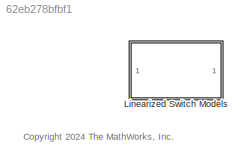
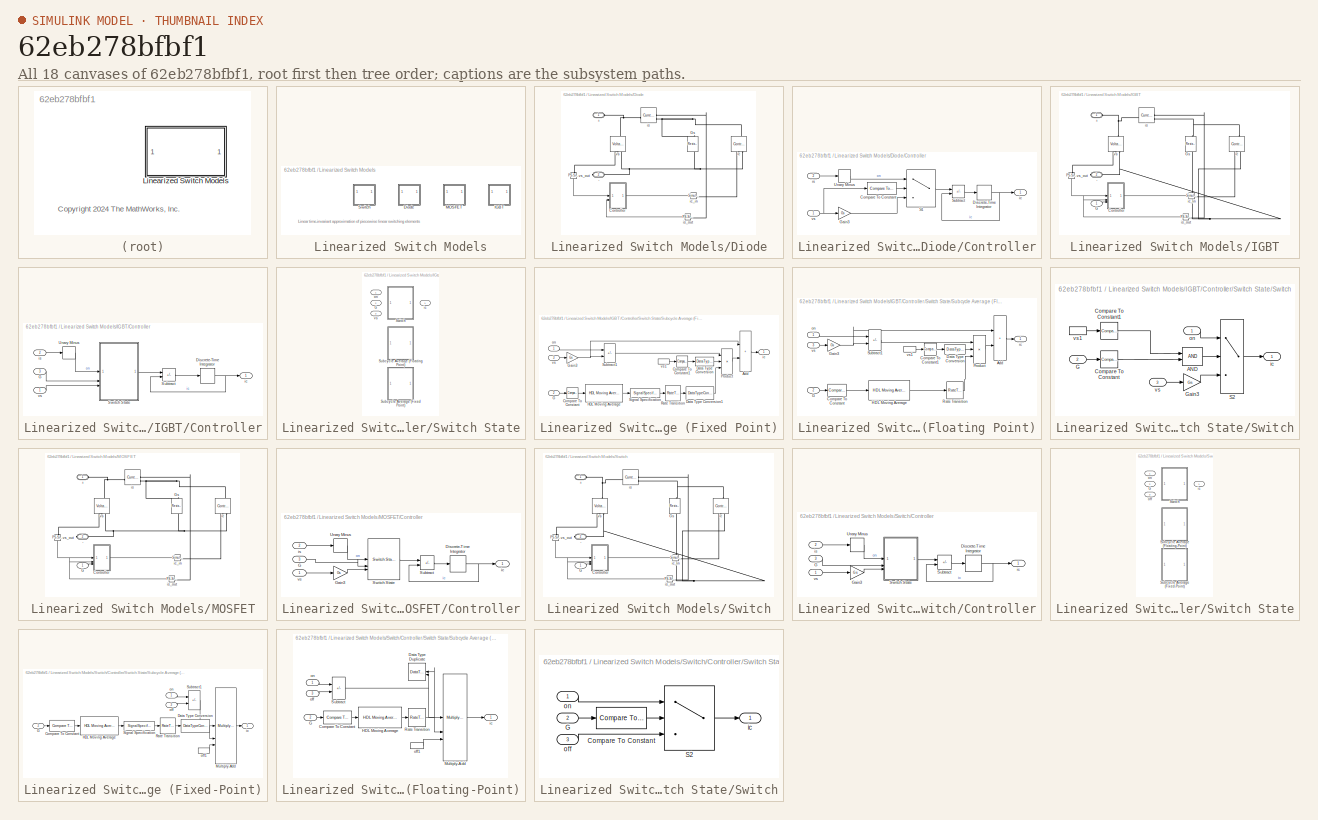
[diagram: thumbnail index - all 18 canvases of the model, root first then tree order]
MODEL slx_62eb278bfbf1
KIND library
CONFIG AbsTol = auto
CONFIG EnableMultiTasking = off
CONFIG FixedStep = auto
CONFIG MaxStep = auto
CONFIG MinStep = auto
CONFIG RelTol = 1e-3
CONFIG SampleTimeConstraint = Unconstrained
CONFIG SolverName = VariableStepAuto
CONFIG StartTime = 0.0
CONFIG StopTime = 10.0
BLOCK [SubSystem] Linearized Switch Models
BLOCK [SubSystem] Linearized Switch Models/Diode
  CopyFcn = set_param(gcb, 'LinkStatus', 'none');
BLOCK [PMIOPort] Linearized Switch Models/Diode/+
  Side = Left
BLOCK [PMIOPort] Linearized Switch Models/Diode/-
  NameLocation = top
  Port = 2
  Side = Right
BLOCK [SubSystem] Linearized Switch Models/Diode/Controller
BLOCK [Reference] Linearized Switch Models/Diode/Controller/Compare To Constant  REF=simulink/Logic and Bit
Operations/Compare
To Constant
  LibrarySourceBlock = SimscapeFPGAHIL_lib/Linearized Switch Models/Switch/Controller/Switch State/Switch/Compare\nTo Constant
  SourceBlock = simulink/Logic and Bit\nOperations/Compare\nTo Constant
  SourceType = Compare To Constant
BLOCK [DiscreteIntegrator] Linearized Switch Models/Diode/Controller/Discrete-Time Integrator
  ICPrevOutput = DiscIntNeverNeededParam
  ICPrevScaledInput = DiscIntNeverNeededParam
  InitialConditionSetting = Auto
  IntegratorMethod = Accumulation: Forward Euler
  OutDataTypeStr = Inherit: Inherit via back propagation
  SampleTime = -1
  gainval = 1/s
BLOCK [Gain] Linearized Switch Models/Diode/Controller/Gain3
  Gain = Gs
  OutDataTypeStr = Inherit: Inherit via back propagation
BLOCK [Switch] Linearized Switch Models/Diode/Controller/S1
  Criteria = u2 ~= 0
  SaturateOnIntegerOverflow = off
  Threshold = threshold
BLOCK [Sum] Linearized Switch Models/Diode/Controller/Subtract
  IconShape = rectangular
  Inputs = +-
BLOCK [UnaryMinus] Linearized Switch Models/Diode/Controller/Unary Minus
BLOCK [Outport] Linearized Switch Models/Diode/Controller/ic
BLOCK [Inport] Linearized Switch Models/Diode/Controller/is
  NameLocation = top
  Port = 2
BLOCK [Inport] Linearized Switch Models/Diode/Controller/vs
BLOCK [Reference] Linearized Switch Models/Diode/Gs  REF=fl_lib/Electrical/Electrical Elements/Resistor
  LibrarySourceBlock = SimscapeFPGAHIL_lib/Linearized Switch Models/Switch/Gs
  NameLocation = right
  SourceBlock = fl_lib/Electrical/Electrical Elements/Resistor
  SourceType = Resistor
BLOCK [Reference] Linearized Switch Models/Diode/ic  REF=fl_lib/Electrical/Electrical Sources/Controlled Current
Source
  LibrarySourceBlock = SimscapeFPGAHIL_lib/Linearized Switch Models/Switch/ic
  NameLocation = right
  SourceBlock = fl_lib/Electrical/Electrical Sources/Controlled Current\nSource
  SourceType = Controlled Current\nSource
BLOCK [Reference] Linearized Switch Models/Diode/ic_in  REF=nesl_utility/Simulink-PS
Converter
  LibrarySourceBlock = SimscapeFPGAHIL_lib/Linearized Switch Models/Switch/ic_in
  SourceBlock = nesl_utility/Simulink-PS\nConverter
  SourceType = Simulink-PS\nConverter
BLOCK [Reference] Linearized Switch Models/Diode/is  REF=fl_lib/Electrical/Electrical Sensors/Current Sensor
  LibrarySourceBlock = SimscapeFPGAHIL_lib/Linearized Switch Models/Switch/is
  SourceBlock = fl_lib/Electrical/Electrical Sensors/Current Sensor
  SourceType = Current Sensor
BLOCK [Reference] Linearized Switch Models/Diode/is_out  REF=nesl_utility/PS-Simulink
Converter
  LibrarySourceBlock = SimscapeFPGAHIL_lib/Linearized Switch Models/Switch/is_out
  SourceBlock = nesl_utility/PS-Simulink\nConverter
  SourceType = PS-Simulink\nConverter
BLOCK [Reference] Linearized Switch Models/Diode/vs  REF=fl_lib/Electrical/Electrical Sensors/Voltage Sensor
  LibrarySourceBlock = SimscapeFPGAHIL_lib/Linearized Switch Models/Switch/vs
  NameLocation = left
  SourceBlock = fl_lib/Electrical/Electrical Sensors/Voltage Sensor
  SourceType = Voltage Sensor
BLOCK [Reference] Linearized Switch Models/Diode/vs_out  REF=nesl_utility/PS-Simulink
Converter
  LibrarySourceBlock = SimscapeFPGAHIL_lib/Linearized Switch Models/Switch/vs_out
  NameLocation = left
  SourceBlock = nesl_utility/PS-Simulink\nConverter
  SourceType = PS-Simulink\nConverter
BLOCK [SubSystem] Linearized Switch Models/IGBT
  CopyFcn = set_param(gcb, 'LinkStatus', 'none');
BLOCK [PMIOPort] Linearized Switch Models/IGBT/+
  Side = Left
BLOCK [PMIOPort] Linearized Switch Models/IGBT/-
  NameLocation = top
  Port = 2
  Side = Right
BLOCK [SubSystem] Linearized Switch Models/IGBT/Controller
BLOCK [DiscreteIntegrator] Linearized Switch Models/IGBT/Controller/Discrete-Time Integrator
  ICPrevOutput = DiscIntNeverNeededParam
  ICPrevScaledInput = DiscIntNeverNeededParam
  InitialConditionSetting = Auto
  IntegratorMethod = Accumulation: Forward Euler
  OutDataTypeStr = Inherit: Inherit via back propagation
  SampleTime = -1
  gainval = 1/s
BLOCK [Inport] Linearized Switch Models/IGBT/Controller/G
  Port = 3
BLOCK [Sum] Linearized Switch Models/IGBT/Controller/Subtract
  IconShape = rectangular
  Inputs = +-
BLOCK [SubSystem] Linearized Switch Models/IGBT/Controller/Switch State
  Variant = on
  VariantControl = Choice
BLOCK [Inport] Linearized Switch Models/IGBT/Controller/Switch State/G
  Port = 2
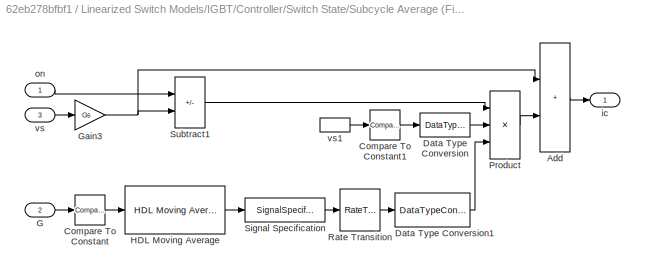
BLOCK [SubSystem] Linearized Switch Models/IGBT/Controller/Switch State/Subcycle Average (Fixed Point)
  LibrarySourceBlock = SimscapeFPGAHIL_lib/Linearized Switch Models/IGBT/Controller/Switch State/Subcycle Average
  VariantControl = avgFactor > 1 && isFixedPoint
BLOCK [Sum] Linearized Switch Models/IGBT/Controller/Switch State/Subcycle Average (Fixed Point)/Add
  IconShape = rectangular
BLOCK [Reference] Linearized Switch Models/IGBT/Controller/Switch State/Subcycle Average (Fixed Point)/Compare To Constant  REF=simulink/Logic and Bit
Operations/Compare
To Constant
  LibrarySourceBlock = SimscapeFPGAHIL_lib/Linearized Switch Models/IGBT/Controller/Switch State/Subcycle Average/Compare\nTo Constant
  SourceBlock = simulink/Logic and Bit\nOperations/Compare\nTo Constant
  SourceType = Compare To Constant
BLOCK [Reference] Linearized Switch Models/IGBT/Controller/Switch State/Subcycle Average (Fixed Point)/Compare To Constant1  REF=simulink/Logic and Bit
Operations/Compare
To Constant
  LibrarySourceBlock = SimscapeFPGAHIL_lib/Linearized Switch Models/IGBT/Controller/Switch State/Subcycle Average/Compare\nTo Constant1
  SourceBlock = simulink/Logic and Bit\nOperations/Compare\nTo Constant
  SourceType = Compare To Constant
BLOCK [DataTypeConversion] Linearized Switch Models/IGBT/Controller/Switch State/Subcycle Average (Fixed Point)/Data Type Conversion
  RndMeth = Floor
  SaturateOnIntegerOverflow = off
BLOCK [DataTypeConversion] Linearized Switch Models/IGBT/Controller/Switch State/Subcycle Average (Fixed Point)/Data Type Conversion1
  RndMeth = Floor
  SaturateOnIntegerOverflow = off
BLOCK [Inport] Linearized Switch Models/IGBT/Controller/Switch State/Subcycle Average (Fixed Point)/G
  Port = 2
BLOCK [Gain] Linearized Switch Models/IGBT/Controller/Switch State/Subcycle Average (Fixed Point)/Gain3
  Gain = Gs
BLOCK [Reference] Linearized Switch Models/IGBT/Controller/Switch State/Subcycle Average (Fixed Point)/HDL Moving Average  REF=fpga_utils_lib/HDL Moving Average  (lib defined in slx_141b27237374)
  SourceBlock = fpga_utils_lib/HDL Moving Average
BLOCK [Product] Linearized Switch Models/IGBT/Controller/Switch State/Subcycle Average (Fixed Point)/Product
  InputSameDT = on
  Inputs = 3
BLOCK [RateTransition] Linearized Switch Models/IGBT/Controller/Switch State/Subcycle Average (Fixed Point)/Rate Transition
  OutPortSampleTimeMultiple = avgFactor
  OutPortSampleTimeOpt = Multiple of input port sample time
BLOCK [SignalSpecification] Linearized Switch Models/IGBT/Controller/Switch State/Subcycle Average (Fixed Point)/Signal Specification
  LockScale = on
  OutDataTypeStr = fixdt(0,15,14)
  OutMax = 1
  OutMin = 0
BLOCK [Sum] Linearized Switch Models/IGBT/Controller/Switch State/Subcycle Average (Fixed Point)/Subtract1
  IconShape = rectangular
  Inputs = +-
BLOCK [Outport] Linearized Switch Models/IGBT/Controller/Switch State/Subcycle Average (Fixed Point)/ic
BLOCK [Inport] Linearized Switch Models/IGBT/Controller/Switch State/Subcycle Average (Fixed Point)/on
BLOCK [Inport] Linearized Switch Models/IGBT/Controller/Switch State/Subcycle Average (Fixed Point)/vs
  Port = 3
BLOCK [InportShadow] Linearized Switch Models/IGBT/Controller/Switch State/Subcycle Average (Fixed Point)/vs1
  Port = 3
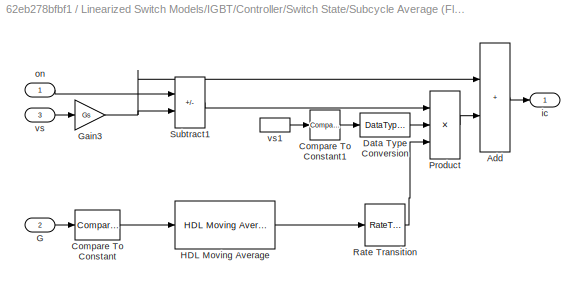
BLOCK [SubSystem] Linearized Switch Models/IGBT/Controller/Switch State/Subcycle Average (Floating Point)
  VariantControl = avgFactor > 1 && ~isFixedPoint
BLOCK [Sum] Linearized Switch Models/IGBT/Controller/Switch State/Subcycle Average (Floating Point)/Add
  IconShape = rectangular
BLOCK [Reference] Linearized Switch Models/IGBT/Controller/Switch State/Subcycle Average (Floating Point)/Compare To Constant  REF=simulink/Logic and Bit
Operations/Compare
To Constant
  SourceBlock = simulink/Logic and Bit\nOperations/Compare\nTo Constant
  SourceType = Compare To Constant
BLOCK [Reference] Linearized Switch Models/IGBT/Controller/Switch State/Subcycle Average (Floating Point)/Compare To Constant1  REF=simulink/Logic and Bit
Operations/Compare
To Constant
  SourceBlock = simulink/Logic and Bit\nOperations/Compare\nTo Constant
  SourceType = Compare To Constant
BLOCK [DataTypeConversion] Linearized Switch Models/IGBT/Controller/Switch State/Subcycle Average (Floating Point)/Data Type Conversion
  RndMeth = Floor
  SaturateOnIntegerOverflow = off
BLOCK [Inport] Linearized Switch Models/IGBT/Controller/Switch State/Subcycle Average (Floating Point)/G
  Port = 2
BLOCK [Gain] Linearized Switch Models/IGBT/Controller/Switch State/Subcycle Average (Floating Point)/Gain3
  Gain = Gs
BLOCK [Reference] Linearized Switch Models/IGBT/Controller/Switch State/Subcycle Average (Floating Point)/HDL Moving Average  REF=fpga_utils_lib/HDL Moving Average  (lib defined in slx_141b27237374)
  SourceBlock = fpga_utils_lib/HDL Moving Average
BLOCK [Product] Linearized Switch Models/IGBT/Controller/Switch State/Subcycle Average (Floating Point)/Product
  InputSameDT = on
  Inputs = 3
BLOCK [RateTransition] Linearized Switch Models/IGBT/Controller/Switch State/Subcycle Average (Floating Point)/Rate Transition
  OutPortSampleTimeMultiple = avgFactor
  OutPortSampleTimeOpt = Multiple of input port sample time
BLOCK [Sum] Linearized Switch Models/IGBT/Controller/Switch State/Subcycle Average (Floating Point)/Subtract1
  IconShape = rectangular
  Inputs = +-
  OutDataTypeStr = Inherit: Same as first input
BLOCK [Outport] Linearized Switch Models/IGBT/Controller/Switch State/Subcycle Average (Floating Point)/ic
BLOCK [Inport] Linearized Switch Models/IGBT/Controller/Switch State/Subcycle Average (Floating Point)/on
BLOCK [Inport] Linearized Switch Models/IGBT/Controller/Switch State/Subcycle Average (Floating Point)/vs
  Port = 3
BLOCK [InportShadow] Linearized Switch Models/IGBT/Controller/Switch State/Subcycle Average (Floating Point)/vs1
  Port = 3
BLOCK [SubSystem] Linearized Switch Models/IGBT/Controller/Switch State/Switch
  VariantControl = avgFactor == 1
BLOCK [Logic] Linearized Switch Models/IGBT/Controller/Switch State/Switch/AND
  AllPortsSameDT = off
  IconShape = distinctive
  OutDataTypeStr = boolean
BLOCK [Reference] Linearized Switch Models/IGBT/Controller/Switch State/Switch/Compare To Constant  REF=simulink/Logic and Bit
Operations/Compare
To Constant
  LibrarySourceBlock = SimscapeFPGAHIL_lib/Linearized Switch Models/Controller/Switch State/Switch/Compare\nTo Constant
  SourceBlock = simulink/Logic and Bit\nOperations/Compare\nTo Constant
  SourceType = Compare To Constant
BLOCK [Reference] Linearized Switch Models/IGBT/Controller/Switch State/Switch/Compare To Constant1  REF=simulink/Logic and Bit
Operations/Compare
To Constant
  LibrarySourceBlock = SimscapeFPGAHIL_lib/Linearized Switch Models/Controller/Switch State/Switch/Compare\nTo Constant1
  SourceBlock = simulink/Logic and Bit\nOperations/Compare\nTo Constant
  SourceType = Compare To Constant
BLOCK [Inport] Linearized Switch Models/IGBT/Controller/Switch State/Switch/G
  Port = 2
BLOCK [Gain] Linearized Switch Models/IGBT/Controller/Switch State/Switch/Gain3
  Gain = Gs
  OutDataTypeStr = Inherit: Inherit via back propagation
BLOCK [Switch] Linearized Switch Models/IGBT/Controller/Switch State/Switch/S2
  Criteria = u2 ~= 0
  SaturateOnIntegerOverflow = off
  Threshold = threshold
BLOCK [Outport] Linearized Switch Models/IGBT/Controller/Switch State/Switch/ic
BLOCK [Inport] Linearized Switch Models/IGBT/Controller/Switch State/Switch/on
BLOCK [Inport] Linearized Switch Models/IGBT/Controller/Switch State/Switch/vs
  Port = 3
BLOCK [InportShadow] Linearized Switch Models/IGBT/Controller/Switch State/Switch/vs1
  Port = 3
BLOCK [Outport] Linearized Switch Models/IGBT/Controller/Switch State/ic
BLOCK [Inport] Linearized Switch Models/IGBT/Controller/Switch State/on
BLOCK [Inport] Linearized Switch Models/IGBT/Controller/Switch State/vs
  Port = 3
BLOCK [UnaryMinus] Linearized Switch Models/IGBT/Controller/Unary Minus
BLOCK [Outport] Linearized Switch Models/IGBT/Controller/ic
BLOCK [Inport] Linearized Switch Models/IGBT/Controller/is
  NameLocation = top
  Port = 2
BLOCK [Inport] Linearized Switch Models/IGBT/Controller/vs
BLOCK [Inport] Linearized Switch Models/IGBT/G
BLOCK [Reference] Linearized Switch Models/IGBT/Gs  REF=fl_lib/Electrical/Electrical Elements/Resistor
  LibrarySourceBlock = SimscapeFPGAHIL_lib/Linearized Switch Models/MOSFET/Gs
  NameLocation = right
  SourceBlock = fl_lib/Electrical/Electrical Elements/Resistor
  SourceType = Resistor
BLOCK [Reference] Linearized Switch Models/IGBT/ic  REF=fl_lib/Electrical/Electrical Sources/Controlled Current
Source
  LibrarySourceBlock = SimscapeFPGAHIL_lib/Linearized Switch Models/MOSFET/ic
  NameLocation = right
  SourceBlock = fl_lib/Electrical/Electrical Sources/Controlled Current\nSource
  SourceType = Controlled Current\nSource
BLOCK [Reference] Linearized Switch Models/IGBT/ic_in  REF=nesl_utility/Simulink-PS
Converter
  LibrarySourceBlock = SimscapeFPGAHIL_lib/Linearized Switch Models/MOSFET/ic_in
  SourceBlock = nesl_utility/Simulink-PS\nConverter
  SourceType = Simulink-PS\nConverter
BLOCK [Reference] Linearized Switch Models/IGBT/is  REF=fl_lib/Electrical/Electrical Sensors/Current Sensor
  LibrarySourceBlock = SimscapeFPGAHIL_lib/Linearized Switch Models/MOSFET/is
  SourceBlock = fl_lib/Electrical/Electrical Sensors/Current Sensor
  SourceType = Current Sensor
BLOCK [Reference] Linearized Switch Models/IGBT/is_out  REF=nesl_utility/PS-Simulink
Converter
  LibrarySourceBlock = SimscapeFPGAHIL_lib/Linearized Switch Models/MOSFET/is_out
  SourceBlock = nesl_utility/PS-Simulink\nConverter
  SourceType = PS-Simulink\nConverter
BLOCK [Reference] Linearized Switch Models/IGBT/vs  REF=fl_lib/Electrical/Electrical Sensors/Voltage Sensor
  LibrarySourceBlock = SimscapeFPGAHIL_lib/Linearized Switch Models/MOSFET/vs
  NameLocation = left
  SourceBlock = fl_lib/Electrical/Electrical Sensors/Voltage Sensor
  SourceType = Voltage Sensor
BLOCK [Reference] Linearized Switch Models/IGBT/vs_out  REF=nesl_utility/PS-Simulink
Converter
  LibrarySourceBlock = SimscapeFPGAHIL_lib/Linearized Switch Models/MOSFET/vs_out
  NameLocation = left
  SourceBlock = nesl_utility/PS-Simulink\nConverter
  SourceType = PS-Simulink\nConverter
BLOCK [SubSystem] Linearized Switch Models/MOSFET
  CopyFcn = set_param(gcb, 'LinkStatus', 'none');
BLOCK [PMIOPort] Linearized Switch Models/MOSFET/+
  Side = Left
BLOCK [PMIOPort] Linearized Switch Models/MOSFET/-
  NameLocation = top
  Port = 2
  Side = Right
BLOCK [SubSystem] Linearized Switch Models/MOSFET/Controller
BLOCK [DiscreteIntegrator] Linearized Switch Models/MOSFET/Controller/Discrete-Time Integrator
  ICPrevOutput = DiscIntNeverNeededParam
  ICPrevScaledInput = DiscIntNeverNeededParam
  InitialConditionSetting = Auto
  IntegratorMethod = Accumulation: Forward Euler
  OutDataTypeStr = Inherit: Inherit via back propagation
  SampleTime = -1
  gainval = 1/s
BLOCK [Inport] Linearized Switch Models/MOSFET/Controller/G
  Port = 3
BLOCK [Gain] Linearized Switch Models/MOSFET/Controller/Gain3
  Gain = Gs
  OutDataTypeStr = Inherit: Inherit via back propagation
BLOCK [Sum] Linearized Switch Models/MOSFET/Controller/Subtract
  IconShape = rectangular
  Inputs = +-
BLOCK [Reference] Linearized Switch Models/MOSFET/Controller/Switch State  REF=$bdroot/Linearized Switch Models/Switch/Controller/Switch State
  LibrarySourceBlock = SimscapeFPGAHIL_lib/Linearized Switch Models/MOSFET/Controller/Controller/Switch State
  SourceBlock = $bdroot/Linearized Switch Models/Switch/Controller/Switch State
  SourceType = SubSystem
BLOCK [UnaryMinus] Linearized Switch Models/MOSFET/Controller/Unary Minus
BLOCK [Outport] Linearized Switch Models/MOSFET/Controller/ic
BLOCK [Inport] Linearized Switch Models/MOSFET/Controller/is
  NameLocation = top
  Port = 2
BLOCK [Inport] Linearized Switch Models/MOSFET/Controller/vs
BLOCK [Inport] Linearized Switch Models/MOSFET/G
BLOCK [Reference] Linearized Switch Models/MOSFET/Gs  REF=fl_lib/Electrical/Electrical Elements/Resistor
  NameLocation = right
  SourceBlock = fl_lib/Electrical/Electrical Elements/Resistor
  SourceType = Resistor
BLOCK [Reference] Linearized Switch Models/MOSFET/ic  REF=fl_lib/Electrical/Electrical Sources/Controlled Current
Source
  NameLocation = right
  SourceBlock = fl_lib/Electrical/Electrical Sources/Controlled Current\nSource
  SourceType = Controlled Current\nSource
BLOCK [Reference] Linearized Switch Models/MOSFET/ic_in  REF=nesl_utility/Simulink-PS
Converter
  SourceBlock = nesl_utility/Simulink-PS\nConverter
  SourceType = Simulink-PS\nConverter
BLOCK [Reference] Linearized Switch Models/MOSFET/is  REF=fl_lib/Electrical/Electrical Sensors/Current Sensor
  SourceBlock = fl_lib/Electrical/Electrical Sensors/Current Sensor
  SourceType = Current Sensor
BLOCK [Reference] Linearized Switch Models/MOSFET/is_out  REF=nesl_utility/PS-Simulink
Converter
  SourceBlock = nesl_utility/PS-Simulink\nConverter
  SourceType = PS-Simulink\nConverter
BLOCK [Reference] Linearized Switch Models/MOSFET/vs  REF=fl_lib/Electrical/Electrical Sensors/Voltage Sensor
  NameLocation = left
  SourceBlock = fl_lib/Electrical/Electrical Sensors/Voltage Sensor
  SourceType = Voltage Sensor
BLOCK [Reference] Linearized Switch Models/MOSFET/vs_out  REF=nesl_utility/PS-Simulink
Converter
  NameLocation = left
  SourceBlock = nesl_utility/PS-Simulink\nConverter
  SourceType = PS-Simulink\nConverter
BLOCK [SubSystem] Linearized Switch Models/Switch
  CopyFcn = set_param(gcb, 'LinkStatus', 'none');
BLOCK [PMIOPort] Linearized Switch Models/Switch/+
  Side = Left
BLOCK [PMIOPort] Linearized Switch Models/Switch/-
  NameLocation = top
  Port = 2
  Side = Right
BLOCK [SubSystem] Linearized Switch Models/Switch/Controller
BLOCK [DiscreteIntegrator] Linearized Switch Models/Switch/Controller/Discrete-Time Integrator
  ICPrevOutput = DiscIntNeverNeededParam
  ICPrevScaledInput = DiscIntNeverNeededParam
  InitialConditionSetting = Auto
  IntegratorMethod = Accumulation: Forward Euler
  OutDataTypeStr = Inherit: Inherit via back propagation
  SampleTime = -1
  gainval = 1/s
BLOCK [Inport] Linearized Switch Models/Switch/Controller/G
  Port = 3
BLOCK [Gain] Linearized Switch Models/Switch/Controller/Gain3
  Gain = Gs
  OutDataTypeStr = Inherit: Inherit via back propagation
BLOCK [Sum] Linearized Switch Models/Switch/Controller/Subtract
  IconShape = rectangular
  Inputs = +-
BLOCK [SubSystem] Linearized Switch Models/Switch/Controller/Switch State
  Variant = on
  VariantControl = Choice
BLOCK [Inport] Linearized Switch Models/Switch/Controller/Switch State/G
  Port = 2
BLOCK [SubSystem] Linearized Switch Models/Switch/Controller/Switch State/Subcycle Average (Fixed-Point)
  VariantControl = avgFactor > 1 && isFixedPoint == true
BLOCK [Reference] Linearized Switch Models/Switch/Controller/Switch State/Subcycle Average (Fixed-Point)/Compare To Constant  REF=simulink/Logic and Bit
Operations/Compare
To Constant
  SourceBlock = simulink/Logic and Bit\nOperations/Compare\nTo Constant
  SourceType = Compare To Constant
BLOCK [DataTypeConversion] Linearized Switch Models/Switch/Controller/Switch State/Subcycle Average (Fixed-Point)/Data Type Conversion
  RndMeth = Floor
  SaturateOnIntegerOverflow = off
BLOCK [Inport] Linearized Switch Models/Switch/Controller/Switch State/Subcycle Average (Fixed-Point)/G
  Port = 2
BLOCK [Reference] Linearized Switch Models/Switch/Controller/Switch State/Subcycle Average (Fixed-Point)/HDL Moving Average  REF=fpga_utils_lib/HDL Moving Average  (lib defined in slx_141b27237374)
  SourceBlock = fpga_utils_lib/HDL Moving Average
BLOCK [Reference] Linearized Switch Models/Switch/Controller/Switch State/Subcycle Average (Fixed-Point)/Multiply-Add  REF=hdlsllib/HDL Operations/Multiply-Add
  LibrarySourceBlock = SimscapeFPGAHIL_lib/Linearized Switch Models/Switch/Controller/Switch State/Subcycle Average (Floating-Point)/Multiply-Add
  SourceBlock = hdlsllib/HDL Operations/Multiply-Add
  SourceType = Multiply-Add
BLOCK [RateTransition] Linearized Switch Models/Switch/Controller/Switch State/Subcycle Average (Fixed-Point)/Rate Transition
  OutPortSampleTimeMultiple = avgFactor
  OutPortSampleTimeOpt = Multiple of input port sample time
BLOCK [SignalSpecification] Linearized Switch Models/Switch/Controller/Switch State/Subcycle Average (Fixed-Point)/Signal Specification
  LockScale = on
  OutDataTypeStr = fixdt(0,15,14)
  OutMax = 1
  OutMin = 0
BLOCK [Sum] Linearized Switch Models/Switch/Controller/Switch State/Subcycle Average (Fixed-Point)/Subtract1
  IconShape = rectangular
  Inputs = +-
BLOCK [Outport] Linearized Switch Models/Switch/Controller/Switch State/Subcycle Average (Fixed-Point)/ic
BLOCK [Inport] Linearized Switch Models/Switch/Controller/Switch State/Subcycle Average (Fixed-Point)/off
  Port = 3
BLOCK [InportShadow] Linearized Switch Models/Switch/Controller/Switch State/Subcycle Average (Fixed-Point)/off1
  Port = 3
BLOCK [Inport] Linearized Switch Models/Switch/Controller/Switch State/Subcycle Average (Fixed-Point)/on
BLOCK [SubSystem] Linearized Switch Models/Switch/Controller/Switch State/Subcycle Average (Floating-Point)
  VariantControl = avgFactor > 1 && isFixedPoint == false
BLOCK [Reference] Linearized Switch Models/Switch/Controller/Switch State/Subcycle Average (Floating-Point)/Compare To Constant  REF=simulink/Logic and Bit
Operations/Compare
To Constant
  SourceBlock = simulink/Logic and Bit\nOperations/Compare\nTo Constant
  SourceType = Compare To Constant
BLOCK [DataTypeDuplicate] Linearized Switch Models/Switch/Controller/Switch State/Subcycle Average (Floating-Point)/Data Type Duplicate
BLOCK [Inport] Linearized Switch Models/Switch/Controller/Switch State/Subcycle Average (Floating-Point)/G
  Port = 2
BLOCK [Reference] Linearized Switch Models/Switch/Controller/Switch State/Subcycle Average (Floating-Point)/HDL Moving Average  REF=fpga_utils_lib/HDL Moving Average  (lib defined in slx_141b27237374)
  SourceBlock = fpga_utils_lib/HDL Moving Average
BLOCK [Reference] Linearized Switch Models/Switch/Controller/Switch State/Subcycle Average (Floating-Point)/Multiply-Add  REF=hdlsllib/HDL Operations/Multiply-Add
  SourceBlock = hdlsllib/HDL Operations/Multiply-Add
  SourceType = Multiply-Add
BLOCK [RateTransition] Linearized Switch Models/Switch/Controller/Switch State/Subcycle Average (Floating-Point)/Rate Transition
  OutPortSampleTimeMultiple = avgFactor
  OutPortSampleTimeOpt = Multiple of input port sample time
BLOCK [Sum] Linearized Switch Models/Switch/Controller/Switch State/Subcycle Average (Floating-Point)/Subtract
  IconShape = rectangular
  Inputs = +-
  OutDataTypeStr = Inherit: Same as first input
BLOCK [Outport] Linearized Switch Models/Switch/Controller/Switch State/Subcycle Average (Floating-Point)/ic
BLOCK [Inport] Linearized Switch Models/Switch/Controller/Switch State/Subcycle Average (Floating-Point)/off
  Port = 3
BLOCK [InportShadow] Linearized Switch Models/Switch/Controller/Switch State/Subcycle Average (Floating-Point)/off1
  Port = 3
BLOCK [Inport] Linearized Switch Models/Switch/Controller/Switch State/Subcycle Average (Floating-Point)/on
BLOCK [SubSystem] Linearized Switch Models/Switch/Controller/Switch State/Switch
  VariantControl = avgFactor == 1
BLOCK [Reference] Linearized Switch Models/Switch/Controller/Switch State/Switch/Compare To Constant  REF=simulink/Logic and Bit
Operations/Compare
To Constant
  LibrarySourceBlock = SimscapeFPGAHIL_lib/Linearized Switch Models/Switch/Controller/Switch State/Switch/Compare\nTo Constant
  SourceBlock = simulink/Logic and Bit\nOperations/Compare\nTo Constant
  SourceType = Compare To Constant
BLOCK [Inport] Linearized Switch Models/Switch/Controller/Switch State/Switch/G
  Port = 2
BLOCK [Switch] Linearized Switch Models/Switch/Controller/Switch State/Switch/S2
  Criteria = u2 ~= 0
  SaturateOnIntegerOverflow = off
  Threshold = threshold
BLOCK [Outport] Linearized Switch Models/Switch/Controller/Switch State/Switch/ic
BLOCK [Inport] Linearized Switch Models/Switch/Controller/Switch State/Switch/off
  Port = 3
BLOCK [Inport] Linearized Switch Models/Switch/Controller/Switch State/Switch/on
BLOCK [Outport] Linearized Switch Models/Switch/Controller/Switch State/ic
BLOCK [Inport] Linearized Switch Models/Switch/Controller/Switch State/off
  Port = 3
BLOCK [Inport] Linearized Switch Models/Switch/Controller/Switch State/on
BLOCK [UnaryMinus] Linearized Switch Models/Switch/Controller/Unary Minus
BLOCK [Outport] Linearized Switch Models/Switch/Controller/ic
BLOCK [Inport] Linearized Switch Models/Switch/Controller/is
  NameLocation = top
  Port = 2
BLOCK [Inport] Linearized Switch Models/Switch/Controller/vs
BLOCK [Inport] Linearized Switch Models/Switch/G
BLOCK [Reference] Linearized Switch Models/Switch/Gs  REF=fl_lib/Electrical/Electrical Elements/Resistor
  NameLocation = right
  SourceBlock = fl_lib/Electrical/Electrical Elements/Resistor
  SourceType = Resistor
BLOCK [Reference] Linearized Switch Models/Switch/ic  REF=fl_lib/Electrical/Electrical Sources/Controlled Current
Source
  NameLocation = right
  SourceBlock = fl_lib/Electrical/Electrical Sources/Controlled Current\nSource
  SourceType = Controlled Current\nSource
BLOCK [Reference] Linearized Switch Models/Switch/ic_in  REF=nesl_utility/Simulink-PS
Converter
  SourceBlock = nesl_utility/Simulink-PS\nConverter
  SourceType = Simulink-PS\nConverter
BLOCK [Reference] Linearized Switch Models/Switch/is  REF=fl_lib/Electrical/Electrical Sensors/Current Sensor
  SourceBlock = fl_lib/Electrical/Electrical Sensors/Current Sensor
  SourceType = Current Sensor
BLOCK [Reference] Linearized Switch Models/Switch/is_out  REF=nesl_utility/PS-Simulink
Converter
  SourceBlock = nesl_utility/PS-Simulink\nConverter
  SourceType = PS-Simulink\nConverter
BLOCK [Reference] Linearized Switch Models/Switch/vs  REF=fl_lib/Electrical/Electrical Sensors/Voltage Sensor
  NameLocation = left
  SourceBlock = fl_lib/Electrical/Electrical Sensors/Voltage Sensor
  SourceType = Voltage Sensor
BLOCK [Reference] Linearized Switch Models/Switch/vs_out  REF=nesl_utility/PS-Simulink
Converter
  NameLocation = left
  SourceBlock = nesl_utility/PS-Simulink\nConverter
  SourceType = PS-Simulink\nConverter
ANNOTATION (root): <copyright redacted>
ANNOTATION Linearized Switch Models: Linear time-invariant approximation of piecewise linear switching elements
LINE Linearized Switch Models/Diode/Controller/Compare To Constant:1 -> Linearized Switch Models/Diode/Controller/S1:2
NET Linearized Switch Models/Diode/Controller/Discrete-Time Integrator:1 -> Linearized Switch Models/Diode/Controller/Subtract:2, Linearized Switch Models/Diode/Controller/ic:1
LINE Linearized Switch Models/Diode/Controller/Gain3:1 -> Linearized Switch Models/Diode/Controller/S1:3
LINE Linearized Switch Models/Diode/Controller/S1:1 -> Linearized Switch Models/Diode/Controller/Subtract:1
LINE Linearized Switch Models/Diode/Controller/Subtract:1 -> Linearized Switch Models/Diode/Controller/Discrete-Time Integrator:1
LINE Linearized Switch Models/Diode/Controller/Unary Minus:1 -> Linearized Switch Models/Diode/Controller/S1:1
LINE Linearized Switch Models/Diode/Controller/is:1 -> Linearized Switch Models/Diode/Controller/Unary Minus:1
NET Linearized Switch Models/Diode/Controller/vs:1 -> Linearized Switch Models/Diode/Controller/Compare To Constant:1, Linearized Switch Models/Diode/Controller/Gain3:1
LINE Linearized Switch Models/Diode/Controller:1 -> Linearized Switch Models/Diode/ic_in:1
LINE Linearized Switch Models/Diode/is_out:1 -> Linearized Switch Models/Diode/Controller:2
LINE Linearized Switch Models/Diode/vs_out:1 -> Linearized Switch Models/Diode/Controller:1
NET Linearized Switch Models/IGBT/Controller/Discrete-Time Integrator:1 -> Linearized Switch Models/IGBT/Controller/Subtract:2, Linearized Switch Models/IGBT/Controller/ic:1
LINE Linearized Switch Models/IGBT/Controller/G:1 -> Linearized Switch Models/IGBT/Controller/Switch State:2
LINE Linearized Switch Models/IGBT/Controller/Subtract:1 -> Linearized Switch Models/IGBT/Controller/Discrete-Time Integrator:1
LINE Linearized Switch Models/IGBT/Controller/Switch State/Subcycle Average (Fixed Point)/Add:1 -> Linearized Switch Models/IGBT/Controller/Switch State/Subcycle Average (Fixed Point)/ic:1
LINE Linearized Switch Models/IGBT/Controller/Switch State/Subcycle Average (Fixed Point)/Compare To Constant1:1 -> Linearized Switch Models/IGBT/Controller/Switch State/Subcycle Average (Fixed Point)/Data Type Conversion:1
LINE Linearized Switch Models/IGBT/Controller/Switch State/Subcycle Average (Fixed Point)/Compare To Constant:1 -> Linearized Switch Models/IGBT/Controller/Switch State/Subcycle Average (Fixed Point)/HDL Moving Average:1
LINE Linearized Switch Models/IGBT/Controller/Switch State/Subcycle Average (Fixed Point)/Data Type Conversion1:1 -> Linearized Switch Models/IGBT/Controller/Switch State/Subcycle Average (Fixed Point)/Product:3
LINE Linearized Switch Models/IGBT/Controller/Switch State/Subcycle Average (Fixed Point)/Data Type Conversion:1 -> Linearized Switch Models/IGBT/Controller/Switch State/Subcycle Average (Fixed Point)/Product:2
LINE Linearized Switch Models/IGBT/Controller/Switch State/Subcycle Average (Fixed Point)/G:1 -> Linearized Switch Models/IGBT/Controller/Switch State/Subcycle Average (Fixed Point)/Compare To Constant:1
NET Linearized Switch Models/IGBT/Controller/Switch State/Subcycle Average (Fixed Point)/Gain3:1 -> Linearized Switch Models/IGBT/Controller/Switch State/Subcycle Average (Fixed Point)/Add:1, Linearized Switch Models/IGBT/Controller/Switch State/Subcycle Average (Fixed Point)/Subtract1:2
LINE Linearized Switch Models/IGBT/Controller/Switch State/Subcycle Average (Fixed Point)/HDL Moving Average:1 -> Linearized Switch Models/IGBT/Controller/Switch State/Subcycle Average (Fixed Point)/Signal Specification:1
LINE Linearized Switch Models/IGBT/Controller/Switch State/Subcycle Average (Fixed Point)/Product:1 -> Linearized Switch Models/IGBT/Controller/Switch State/Subcycle Average (Fixed Point)/Add:2
LINE Linearized Switch Models/IGBT/Controller/Switch State/Subcycle Average (Fixed Point)/Rate Transition:1 -> Linearized Switch Models/IGBT/Controller/Switch State/Subcycle Average (Fixed Point)/Data Type Conversion1:1
LINE Linearized Switch Models/IGBT/Controller/Switch State/Subcycle Average (Fixed Point)/Signal Specification:1 -> Linearized Switch Models/IGBT/Controller/Switch State/Subcycle Average (Fixed Point)/Rate Transition:1
LINE Linearized Switch Models/IGBT/Controller/Switch State/Subcycle Average (Fixed Point)/Subtract1:1 -> Linearized Switch Models/IGBT/Controller/Switch State/Subcycle Average (Fixed Point)/Product:1
LINE Linearized Switch Models/IGBT/Controller/Switch State/Subcycle Average (Fixed Point)/on:1 -> Linearized Switch Models/IGBT/Controller/Switch State/Subcycle Average (Fixed Point)/Subtract1:1
LINE Linearized Switch Models/IGBT/Controller/Switch State/Subcycle Average (Fixed Point)/vs1:1 -> Linearized Switch Models/IGBT/Controller/Switch State/Subcycle Average (Fixed Point)/Compare To Constant1:1
LINE Linearized Switch Models/IGBT/Controller/Switch State/Subcycle Average (Fixed Point)/vs:1 -> Linearized Switch Models/IGBT/Controller/Switch State/Subcycle Average (Fixed Point)/Gain3:1
LINE Linearized Switch Models/IGBT/Controller/Switch State/Subcycle Average (Floating Point)/Add:1 -> Linearized Switch Models/IGBT/Controller/Switch State/Subcycle Average (Floating Point)/ic:1
LINE Linearized Switch Models/IGBT/Controller/Switch State/Subcycle Average (Floating Point)/Compare To Constant1:1 -> Linearized Switch Models/IGBT/Controller/Switch State/Subcycle Average (Floating Point)/Data Type Conversion:1
LINE Linearized Switch Models/IGBT/Controller/Switch State/Subcycle Average (Floating Point)/Compare To Constant:1 -> Linearized Switch Models/IGBT/Controller/Switch State/Subcycle Average (Floating Point)/HDL Moving Average:1
LINE Linearized Switch Models/IGBT/Controller/Switch State/Subcycle Average (Floating Point)/Data Type Conversion:1 -> Linearized Switch Models/IGBT/Controller/Switch State/Subcycle Average (Floating Point)/Product:2
LINE Linearized Switch Models/IGBT/Controller/Switch State/Subcycle Average (Floating Point)/G:1 -> Linearized Switch Models/IGBT/Controller/Switch State/Subcycle Average (Floating Point)/Compare To Constant:1
NET Linearized Switch Models/IGBT/Controller/Switch State/Subcycle Average (Floating Point)/Gain3:1 -> Linearized Switch Models/IGBT/Controller/Switch State/Subcycle Average (Floating Point)/Add:1, Linearized Switch Models/IGBT/Controller/Switch State/Subcycle Average (Floating Point)/Subtract1:2
LINE Linearized Switch Models/IGBT/Controller/Switch State/Subcycle Average (Floating Point)/HDL Moving Average:1 -> Linearized Switch Models/IGBT/Controller/Switch State/Subcycle Average (Floating Point)/Rate Transition:1
LINE Linearized Switch Models/IGBT/Controller/Switch State/Subcycle Average (Floating Point)/Product:1 -> Linearized Switch Models/IGBT/Controller/Switch State/Subcycle Average (Floating Point)/Add:2
LINE Linearized Switch Models/IGBT/Controller/Switch State/Subcycle Average (Floating Point)/Rate Transition:1 -> Linearized Switch Models/IGBT/Controller/Switch State/Subcycle Average (Floating Point)/Product:3
LINE Linearized Switch Models/IGBT/Controller/Switch State/Subcycle Average (Floating Point)/Subtract1:1 -> Linearized Switch Models/IGBT/Controller/Switch State/Subcycle Average (Floating Point)/Product:1
LINE Linearized Switch Models/IGBT/Controller/Switch State/Subcycle Average (Floating Point)/on:1 -> Linearized Switch Models/IGBT/Controller/Switch State/Subcycle Average (Floating Point)/Subtract1:1
LINE Linearized Switch Models/IGBT/Controller/Switch State/Subcycle Average (Floating Point)/vs1:1 -> Linearized Switch Models/IGBT/Controller/Switch State/Subcycle Average (Floating Point)/Compare To Constant1:1
LINE Linearized Switch Models/IGBT/Controller/Switch State/Subcycle Average (Floating Point)/vs:1 -> Linearized Switch Models/IGBT/Controller/Switch State/Subcycle Average (Floating Point)/Gain3:1
LINE Linearized Switch Models/IGBT/Controller/Switch State/Switch/AND:1 -> Linearized Switch Models/IGBT/Controller/Switch State/Switch/S2:2
LINE Linearized Switch Models/IGBT/Controller/Switch State/Switch/Compare To Constant1:1 -> Linearized Switch Models/IGBT/Controller/Switch State/Switch/AND:1
LINE Linearized Switch Models/IGBT/Controller/Switch State/Switch/Compare To Constant:1 -> Linearized Switch Models/IGBT/Controller/Switch State/Switch/AND:2
LINE Linearized Switch Models/IGBT/Controller/Switch State/Switch/G:1 -> Linearized Switch Models/IGBT/Controller/Switch State/Switch/Compare To Constant:1
LINE Linearized Switch Models/IGBT/Controller/Switch State/Switch/Gain3:1 -> Linearized Switch Models/IGBT/Controller/Switch State/Switch/S2:3
LINE Linearized Switch Models/IGBT/Controller/Switch State/Switch/S2:1 -> Linearized Switch Models/IGBT/Controller/Switch State/Switch/ic:1
LINE Linearized Switch Models/IGBT/Controller/Switch State/Switch/on:1 -> Linearized Switch Models/IGBT/Controller/Switch State/Switch/S2:1
LINE Linearized Switch Models/IGBT/Controller/Switch State/Switch/vs1:1 -> Linearized Switch Models/IGBT/Controller/Switch State/Switch/Compare To Constant1:1
LINE Linearized Switch Models/IGBT/Controller/Switch State/Switch/vs:1 -> Linearized Switch Models/IGBT/Controller/Switch State/Switch/Gain3:1
LINE Linearized Switch Models/IGBT/Controller/Switch State:1 -> Linearized Switch Models/IGBT/Controller/Subtract:1
LINE Linearized Switch Models/IGBT/Controller/Unary Minus:1 -> Linearized Switch Models/IGBT/Controller/Switch State:1
LINE Linearized Switch Models/IGBT/Controller/is:1 -> Linearized Switch Models/IGBT/Controller/Unary Minus:1
LINE Linearized Switch Models/IGBT/Controller/vs:1 -> Linearized Switch Models/IGBT/Controller/Switch State:3
LINE Linearized Switch Models/IGBT/Controller:1 -> Linearized Switch Models/IGBT/ic_in:1
LINE Linearized Switch Models/IGBT/G:1 -> Linearized Switch Models/IGBT/Controller:3
LINE Linearized Switch Models/IGBT/is_out:1 -> Linearized Switch Models/IGBT/Controller:2
LINE Linearized Switch Models/IGBT/vs_out:1 -> Linearized Switch Models/IGBT/Controller:1
NET Linearized Switch Models/MOSFET/Controller/Discrete-Time Integrator:1 -> Linearized Switch Models/MOSFET/Controller/Subtract:2, Linearized Switch Models/MOSFET/Controller/ic:1
LINE Linearized Switch Models/MOSFET/Controller/G:1 -> Linearized Switch Models/MOSFET/Controller/Switch State:2
LINE Linearized Switch Models/MOSFET/Controller/Gain3:1 -> Linearized Switch Models/MOSFET/Controller/Switch State:3
LINE Linearized Switch Models/MOSFET/Controller/Subtract:1 -> Linearized Switch Models/MOSFET/Controller/Discrete-Time Integrator:1
LINE Linearized Switch Models/MOSFET/Controller/Switch State:1 -> Linearized Switch Models/MOSFET/Controller/Subtract:1
LINE Linearized Switch Models/MOSFET/Controller/Unary Minus:1 -> Linearized Switch Models/MOSFET/Controller/Switch State:1
LINE Linearized Switch Models/MOSFET/Controller/is:1 -> Linearized Switch Models/MOSFET/Controller/Unary Minus:1
LINE Linearized Switch Models/MOSFET/Controller/vs:1 -> Linearized Switch Models/MOSFET/Controller/Gain3:1
LINE Linearized Switch Models/MOSFET/Controller:1 -> Linearized Switch Models/MOSFET/ic_in:1
LINE Linearized Switch Models/MOSFET/G:1 -> Linearized Switch Models/MOSFET/Controller:3
LINE Linearized Switch Models/MOSFET/is_out:1 -> Linearized Switch Models/MOSFET/Controller:2
LINE Linearized Switch Models/MOSFET/vs_out:1 -> Linearized Switch Models/MOSFET/Controller:1
NET Linearized Switch Models/Switch/Controller/Discrete-Time Integrator:1 -> Linearized Switch Models/Switch/Controller/Subtract:2, Linearized Switch Models/Switch/Controller/ic:1
LINE Linearized Switch Models/Switch/Controller/G:1 -> Linearized Switch Models/Switch/Controller/Switch State:2
LINE Linearized Switch Models/Switch/Controller/Gain3:1 -> Linearized Switch Models/Switch/Controller/Switch State:3
LINE Linearized Switch Models/Switch/Controller/Subtract:1 -> Linearized Switch Models/Switch/Controller/Discrete-Time Integrator:1
LINE Linearized Switch Models/Switch/Controller/Switch State/Subcycle Average (Fixed-Point)/Compare To Constant:1 -> Linearized Switch Models/Switch/Controller/Switch State/Subcycle Average (Fixed-Point)/HDL Moving Average:1
LINE Linearized Switch Models/Switch/Controller/Switch State/Subcycle Average (Fixed-Point)/Data Type Conversion:1 -> Linearized Switch Models/Switch/Controller/Switch State/Subcycle Average (Fixed-Point)/Multiply-Add:2
LINE Linearized Switch Models/Switch/Controller/Switch State/Subcycle Average (Fixed-Point)/G:1 -> Linearized Switch Models/Switch/Controller/Switch State/Subcycle Average (Fixed-Point)/Compare To Constant:1
LINE Linearized Switch Models/Switch/Controller/Switch State/Subcycle Average (Fixed-Point)/HDL Moving Average:1 -> Linearized Switch Models/Switch/Controller/Switch State/Subcycle Average (Fixed-Point)/Signal Specification:1
LINE Linearized Switch Models/Switch/Controller/Switch State/Subcycle Average (Fixed-Point)/Multiply-Add:1 -> Linearized Switch Models/Switch/Controller/Switch State/Subcycle Average (Fixed-Point)/ic:1
LINE Linearized Switch Models/Switch/Controller/Switch State/Subcycle Average (Fixed-Point)/Rate Transition:1 -> Linearized Switch Models/Switch/Controller/Switch State/Subcycle Average (Fixed-Point)/Data Type Conversion:1
LINE Linearized Switch Models/Switch/Controller/Switch State/Subcycle Average (Fixed-Point)/Signal Specification:1 -> Linearized Switch Models/Switch/Controller/Switch State/Subcycle Average (Fixed-Point)/Rate Transition:1
LINE Linearized Switch Models/Switch/Controller/Switch State/Subcycle Average (Fixed-Point)/Subtract1:1 -> Linearized Switch Models/Switch/Controller/Switch State/Subcycle Average (Fixed-Point)/Multiply-Add:1
LINE Linearized Switch Models/Switch/Controller/Switch State/Subcycle Average (Fixed-Point)/off1:1 -> Linearized Switch Models/Switch/Controller/Switch State/Subcycle Average (Fixed-Point)/Multiply-Add:3
LINE Linearized Switch Models/Switch/Controller/Switch State/Subcycle Average (Fixed-Point)/off:1 -> Linearized Switch Models/Switch/Controller/Switch State/Subcycle Average (Fixed-Point)/Subtract1:2
LINE Linearized Switch Models/Switch/Controller/Switch State/Subcycle Average (Fixed-Point)/on:1 -> Linearized Switch Models/Switch/Controller/Switch State/Subcycle Average (Fixed-Point)/Subtract1:1
LINE Linearized Switch Models/Switch/Controller/Switch State/Subcycle Average (Floating-Point)/Compare To Constant:1 -> Linearized Switch Models/Switch/Controller/Switch State/Subcycle Average (Floating-Point)/HDL Moving Average:1
LINE Linearized Switch Models/Switch/Controller/Switch State/Subcycle Average (Floating-Point)/G:1 -> Linearized Switch Models/Switch/Controller/Switch State/Subcycle Average (Floating-Point)/Compare To Constant:1
LINE Linearized Switch Models/Switch/Controller/Switch State/Subcycle Average (Floating-Point)/HDL Moving Average:1 -> Linearized Switch Models/Switch/Controller/Switch State/Subcycle Average (Floating-Point)/Rate Transition:1
LINE Linearized Switch Models/Switch/Controller/Switch State/Subcycle Average (Floating-Point)/Multiply-Add:1 -> Linearized Switch Models/Switch/Controller/Switch State/Subcycle Average (Floating-Point)/ic:1
NET Linearized Switch Models/Switch/Controller/Switch State/Subcycle Average (Floating-Point)/Rate Transition:1 -> Linearized Switch Models/Switch/Controller/Switch State/Subcycle Average (Floating-Point)/Data Type Duplicate:1, Linearized Switch Models/Switch/Controller/Switch State/Subcycle Average (Floating-Point)/Multiply-Add:2
NET Linearized Switch Models/Switch/Controller/Switch State/Subcycle Average (Floating-Point)/Subtract:1 -> Linearized Switch Models/Switch/Controller/Switch State/Subcycle Average (Floating-Point)/Data Type Duplicate:2, Linearized Switch Models/Switch/Controller/Switch State/Subcycle Average (Floating-Point)/Multiply-Add:1
LINE Linearized Switch Models/Switch/Controller/Switch State/Subcycle Average (Floating-Point)/off1:1 -> Linearized Switch Models/Switch/Controller/Switch State/Subcycle Average (Floating-Point)/Multiply-Add:3
LINE Linearized Switch Models/Switch/Controller/Switch State/Subcycle Average (Floating-Point)/off:1 -> Linearized Switch Models/Switch/Controller/Switch State/Subcycle Average (Floating-Point)/Subtract:2
LINE Linearized Switch Models/Switch/Controller/Switch State/Subcycle Average (Floating-Point)/on:1 -> Linearized Switch Models/Switch/Controller/Switch State/Subcycle Average (Floating-Point)/Subtract:1
LINE Linearized Switch Models/Switch/Controller/Switch State/Switch/Compare To Constant:1 -> Linearized Switch Models/Switch/Controller/Switch State/Switch/S2:2
LINE Linearized Switch Models/Switch/Controller/Switch State/Switch/G:1 -> Linearized Switch Models/Switch/Controller/Switch State/Switch/Compare To Constant:1
LINE Linearized Switch Models/Switch/Controller/Switch State/Switch/S2:1 -> Linearized Switch Models/Switch/Controller/Switch State/Switch/ic:1
LINE Linearized Switch Models/Switch/Controller/Switch State/Switch/off:1 -> Linearized Switch Models/Switch/Controller/Switch State/Switch/S2:3
LINE Linearized Switch Models/Switch/Controller/Switch State/Switch/on:1 -> Linearized Switch Models/Switch/Controller/Switch State/Switch/S2:1
LINE Linearized Switch Models/Switch/Controller/Switch State:1 -> Linearized Switch Models/Switch/Controller/Subtract:1
LINE Linearized Switch Models/Switch/Controller/Unary Minus:1 -> Linearized Switch Models/Switch/Controller/Switch State:1
LINE Linearized Switch Models/Switch/Controller/is:1 -> Linearized Switch Models/Switch/Controller/Unary Minus:1
LINE Linearized Switch Models/Switch/Controller/vs:1 -> Linearized Switch Models/Switch/Controller/Gain3:1
LINE Linearized Switch Models/Switch/Controller:1 -> Linearized Switch Models/Switch/ic_in:1
LINE Linearized Switch Models/Switch/G:1 -> Linearized Switch Models/Switch/Controller:3
LINE Linearized Switch Models/Switch/is_out:1 -> Linearized Switch Models/Switch/Controller:2
LINE Linearized Switch Models/Switch/vs_out:1 -> Linearized Switch Models/Switch/Controller:1
PNET net1: Linearized Switch Models/Diode/+:RConn1 -- Linearized Switch Models/Diode/is:LConn1 -- Linearized Switch Models/Diode/vs:LConn1
PNET net2: Linearized Switch Models/Diode/-:RConn1 -- Linearized Switch Models/Diode/Gs:RConn1 -- Linearized Switch Models/Diode/ic:RConn2 -- Linearized Switch Models/Diode/vs:RConn2
PNET net3: Linearized Switch Models/Diode/Gs:LConn1 -- Linearized Switch Models/Diode/ic:LConn1 -- Linearized Switch Models/Diode/is:RConn2
PLINE Linearized Switch Models/Diode/ic:RConn1 -- Linearized Switch Models/Diode/ic_in:RConn1
PLINE Linearized Switch Models/Diode/is:RConn1 -- Linearized Switch Models/Diode/is_out:LConn1
PLINE Linearized Switch Models/Diode/vs:RConn1 -- Linearized Switch Models/Diode/vs_out:LConn1
PNET net4: Linearized Switch Models/IGBT/+:RConn1 -- Linearized Switch Models/IGBT/is:LConn1 -- Linearized Switch Models/IGBT/vs:LConn1
PNET net5: Linearized Switch Models/IGBT/-:RConn1 -- Linearized Switch Models/IGBT/Gs:RConn1 -- Linearized Switch Models/IGBT/ic:RConn2 -- Linearized Switch Models/IGBT/vs:RConn2
PNET net6: Linearized Switch Models/IGBT/Gs:LConn1 -- Linearized Switch Models/IGBT/ic:LConn1 -- Linearized Switch Models/IGBT/is:RConn2
PLINE Linearized Switch Models/IGBT/ic:RConn1 -- Linearized Switch Models/IGBT/ic_in:RConn1
PLINE Linearized Switch Models/IGBT/is:RConn1 -- Linearized Switch Models/IGBT/is_out:LConn1
PLINE Linearized Switch Models/IGBT/vs:RConn1 -- Linearized Switch Models/IGBT/vs_out:LConn1
PNET net7: Linearized Switch Models/MOSFET/+:RConn1 -- Linearized Switch Models/MOSFET/is:LConn1 -- Linearized Switch Models/MOSFET/vs:LConn1
PNET net8: Linearized Switch Models/MOSFET/-:RConn1 -- Linearized Switch Models/MOSFET/Gs:RConn1 -- Linearized Switch Models/MOSFET/ic:RConn2 -- Linearized Switch Models/MOSFET/vs:RConn2
PNET net9: Linearized Switch Models/MOSFET/Gs:LConn1 -- Linearized Switch Models/MOSFET/ic:LConn1 -- Linearized Switch Models/MOSFET/is:RConn2
PLINE Linearized Switch Models/MOSFET/ic:RConn1 -- Linearized Switch Models/MOSFET/ic_in:RConn1
PLINE Linearized Switch Models/MOSFET/is:RConn1 -- Linearized Switch Models/MOSFET/is_out:LConn1
PLINE Linearized Switch Models/MOSFET/vs:RConn1 -- Linearized Switch Models/MOSFET/vs_out:LConn1
PNET net10: Linearized Switch Models/Switch/+:RConn1 -- Linearized Switch Models/Switch/is:LConn1 -- Linearized Switch Models/Switch/vs:LConn1
PNET net11: Linearized Switch Models/Switch/-:RConn1 -- Linearized Switch Models/Switch/Gs:RConn1 -- Linearized Switch Models/Switch/ic:RConn2 -- Linearized Switch Models/Switch/vs:RConn2
PNET net12: Linearized Switch Models/Switch/Gs:LConn1 -- Linearized Switch Models/Switch/ic:LConn1 -- Linearized Switch Models/Switch/is:RConn2
PLINE Linearized Switch Models/Switch/ic:RConn1 -- Linearized Switch Models/Switch/ic_in:RConn1
PLINE Linearized Switch Models/Switch/is:RConn1 -- Linearized Switch Models/Switch/is_out:LConn1
PLINE Linearized Switch Models/Switch/vs:RConn1 -- Linearized Switch Models/Switch/vs_out:LConn1
note: NET lines group one-source signal fan-out (src -> all destinations, sorted); 1:1 wires keep LINE; PNET lines group multi-terminal physical nets as a canonical sorted terminal list (undirected conserving connections); 2-terminal nets keep the pairwise PLINE form
